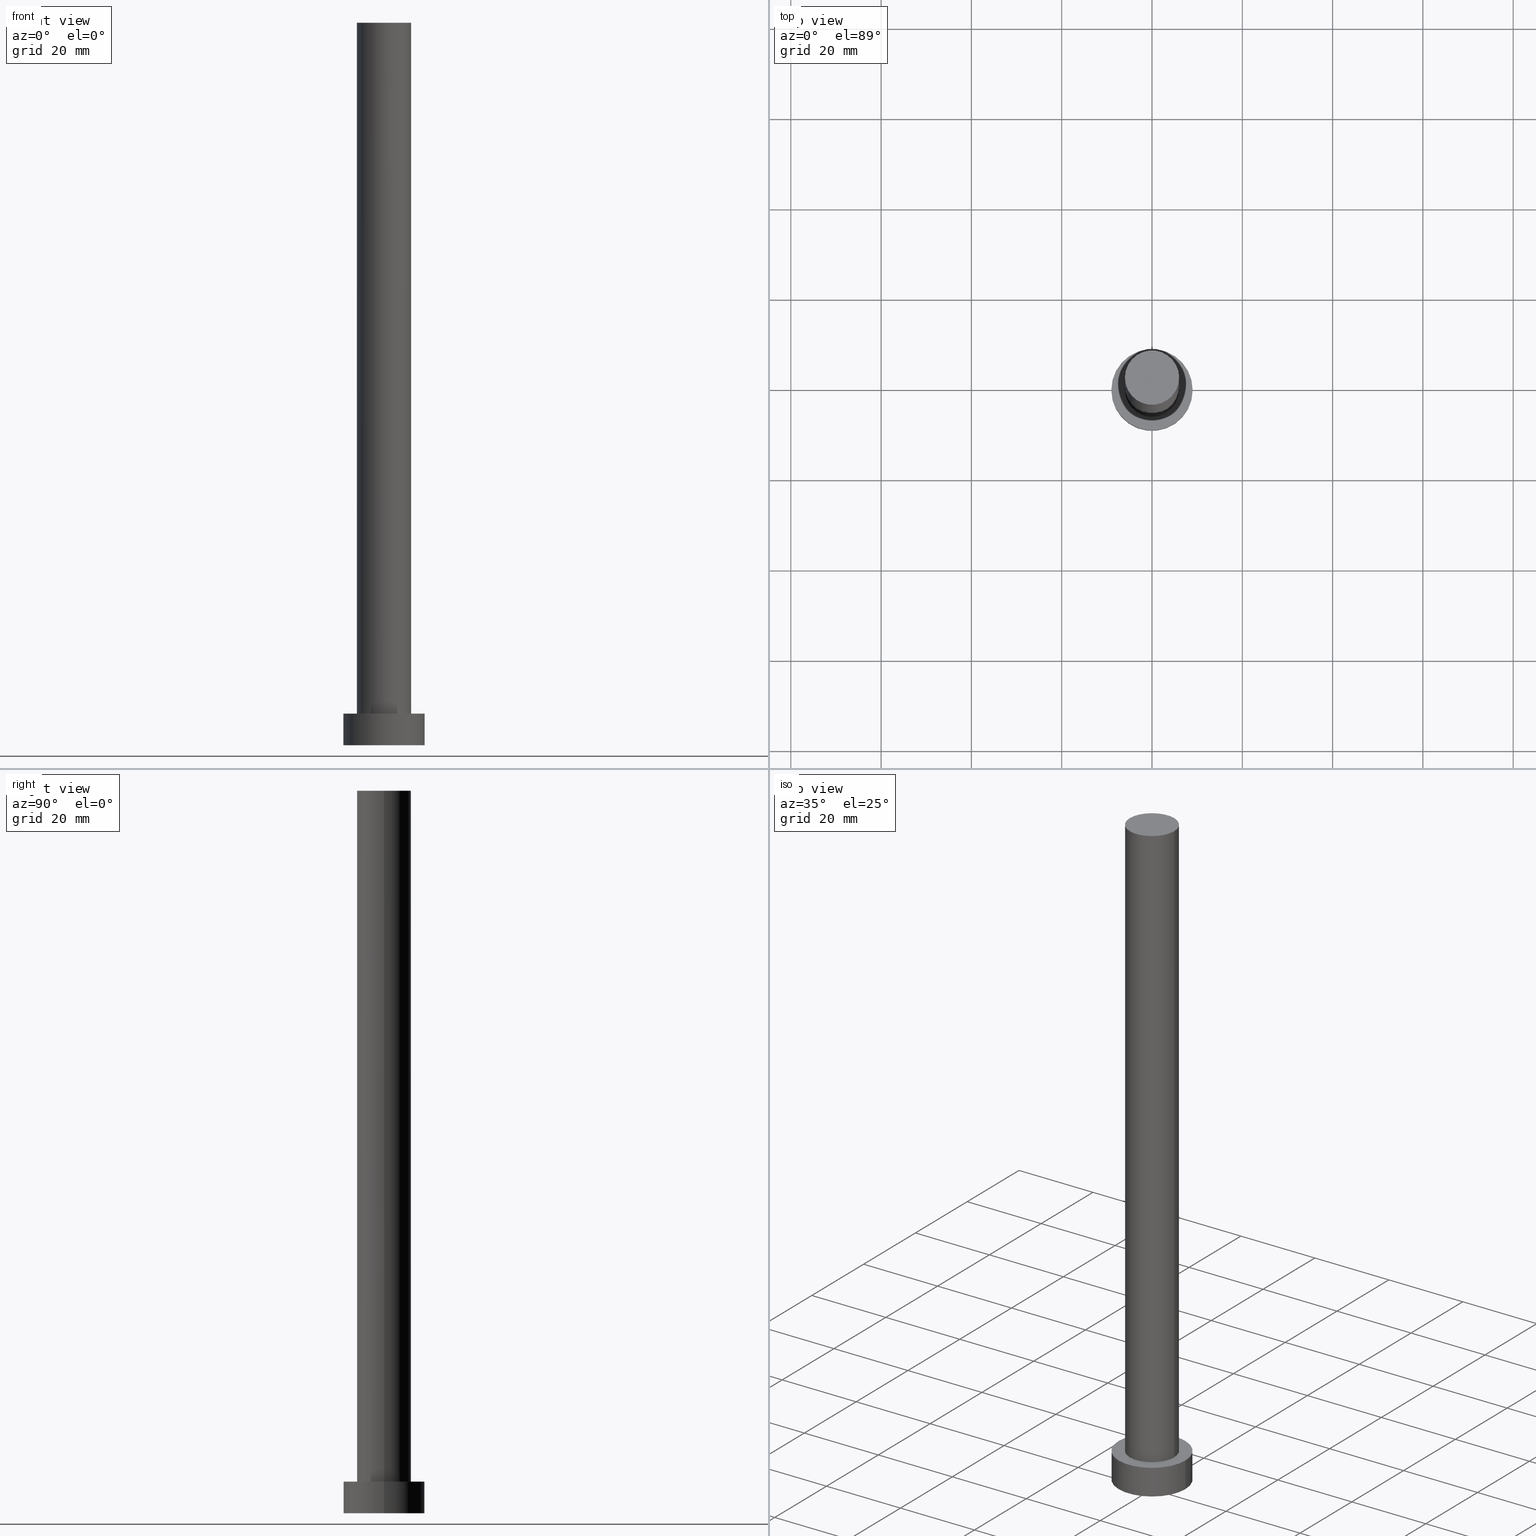
[diagram: canonical four-view strip — front | top / right | iso, engineering-drawing reading convention]
A machine part, canonical four-view strip (front | top / right | iso — engineering-drawing reading convention). The complete STEP part file that produces these views, byte-faithful:
ISO-10303-21;
HEADER;
FILE_DESCRIPTION (( 'STEP AP203' ),
    '1' );
FILE_NAME ('bfc4.STEP',
    '2023-02-13T09:55:40',
    ( '' ),
    ( '' ),
    'SwSTEP 2.0',
    'SolidWorks 2019',
    '' );
FILE_SCHEMA (( 'CONFIG_CONTROL_DESIGN' ));
ENDSEC;

DATA;
#1 = DIRECTION ( 'NONE',  ( 1.000000000000000000, 0.000000000000000000, 0.000000000000000000 ) ) ;
#2 = CARTESIAN_POINT ( 'NONE',  ( -6.000000000000000888, 0.000000000000000000, 7.000000000000000000 ) ) ;
#3 = DIRECTION ( 'NONE',  ( -0.000000000000000000, -0.000000000000000000, -1.000000000000000000 ) ) ;
#4 = FACE_OUTER_BOUND ( 'NONE', #169, .T. ) ;
#5 = CARTESIAN_POINT ( 'NONE',  ( 6.000000000000000888, 7.347880794884120722E-16, 160.0000000000000000 ) ) ;
#6 = ORIENTED_EDGE ( 'NONE', *, *, #74, .T. ) ;
#7 = VECTOR ( 'NONE', #105, 1000.000000000000000 ) ;
#8 = ORIENTED_EDGE ( 'NONE', *, *, #247, .F. ) ;
#9 = EDGE_LOOP ( 'NONE', ( #72, #248 ) ) ;
#10 = DATE_AND_TIME ( #211, #80 ) ;
#11 = EDGE_LOOP ( 'NONE', ( #33, #71 ) ) ;
#12 = DIRECTION ( 'NONE',  ( -0.000000000000000000, -0.000000000000000000, -1.000000000000000000 ) ) ;
#13 = ADVANCED_FACE ( 'NONE', ( #232 ), #139, .T. ) ;
#14 = CALENDAR_DATE ( 2023, 13, 2 ) ;
#15 = CARTESIAN_POINT ( 'NONE',  ( -9.000000000000000000, 0.000000000000000000, 7.000000000000000000 ) ) ;
#16 = CARTESIAN_POINT ( 'NONE',  ( 0.000000000000000000, 0.000000000000000000, 7.000000000000000000 ) ) ;
#17 = UNCERTAINTY_MEASURE_WITH_UNIT (LENGTH_MEASURE( 1.000000000000000082E-05 ), #67, 'distance_accuracy_value', 'NONE');
#18 = CARTESIAN_POINT ( 'NONE',  ( -9.000000000000000000, 0.000000000000000000, 0.000000000000000000 ) ) ;
#19 = DIRECTION ( 'NONE',  ( 1.000000000000000000, 0.000000000000000000, 0.000000000000000000 ) ) ;
#20 = CYLINDRICAL_SURFACE ( 'NONE', #162, 9.000000000000000000 ) ;
#21 = DIRECTION ( 'NONE',  ( -1.000000000000000000, 0.000000000000000000, 0.000000000000000000 ) ) ;
#22 = LOCAL_TIME ( 10, 55, 40.00000000000000000, #53 ) ;
#23 = CARTESIAN_POINT ( 'NONE',  ( 0.000000000000000000, 0.000000000000000000, 160.0000000000000000 ) ) ;
#24 = CALENDAR_DATE ( 2023, 13, 2 ) ;
#25 = CC_DESIGN_DATE_AND_TIME_ASSIGNMENT ( #78, #157, ( #121 ) ) ;
#26 = EDGE_LOOP ( 'NONE', ( #135, #210, #227, #250 ) ) ;
#27 = APPROVAL_PERSON_ORGANIZATION ( #100, #136, #254 ) ;
#28 = EDGE_LOOP ( 'NONE', ( #133, #93 ) ) ;
#29 = DIRECTION ( 'NONE',  ( 1.000000000000000000, 0.000000000000000000, 0.000000000000000000 ) ) ;
#30 = ORIENTED_EDGE ( 'NONE', *, *, #56, .F. ) ;
#31 = CIRCLE ( 'NONE', #225, 9.000000000000000000 ) ;
#32 = COORDINATED_UNIVERSAL_TIME_OFFSET ( 1, 0, .AHEAD. ) ;
#33 = ORIENTED_EDGE ( 'NONE', *, *, #240, .F. ) ;
#34 = ADVANCED_FACE ( 'NONE', ( #219, #238 ), #144, .T. ) ;
#35 = LINE ( 'NONE', #116, #7 ) ;
#36 = COORDINATED_UNIVERSAL_TIME_OFFSET ( 1, 0, .AHEAD. ) ;
#37 = EDGE_CURVE ( 'NONE', #129, #115, #90, .T. ) ;
#38 = DIRECTION ( 'NONE',  ( 1.000000000000000000, 0.000000000000000000, -0.000000000000000000 ) ) ;
#39 = CIRCLE ( 'NONE', #165, 6.000000000000000888 ) ;
#40 = PERSON_AND_ORGANIZATION_ROLE ( 'creator' ) ;
#41 = CARTESIAN_POINT ( 'NONE',  ( 0.000000000000000000, 0.000000000000000000, 160.0000000000000000 ) ) ;
#42 = EDGE_CURVE ( 'NONE', #91, #186, #228, .T. ) ;
#43 = APPROVAL_ROLE ( '' ) ;
#44 = DIRECTION ( 'NONE',  ( 0.000000000000000000, 0.000000000000000000, 1.000000000000000000 ) ) ;
#45 = FACE_OUTER_BOUND ( 'NONE', #251, .T. ) ;
#46 = AXIS2_PLACEMENT_3D ( 'NONE', #141, #44, #229 ) ;
#47 = CYLINDRICAL_SURFACE ( 'NONE', #188, 9.000000000000000000 ) ;
#48 = CARTESIAN_POINT ( 'NONE',  ( 6.000000000000000888, 7.347880794884120722E-16, 160.0000000000000000 ) ) ;
#49 = PRODUCT_DEFINITION_FORMATION_WITH_SPECIFIED_SOURCE ( 'LIBOVOLN�', '', #233, .NOT_KNOWN. ) ;
#50 = CARTESIAN_POINT ( 'NONE',  ( 9.000000000000000000, 1.102182119232617714E-15, 0.000000000000000000 ) ) ;
#51 = EDGE_CURVE ( 'NONE', #171, #55, #123, .T. ) ;
#52 = APPROVAL ( #68, 'NEUR�EN�' ) ;
#53 = COORDINATED_UNIVERSAL_TIME_OFFSET ( 1, 0, .AHEAD. ) ;
#54 = ADVANCED_BREP_SHAPE_REPRESENTATION ( 'bfc4', ( #213, #106 ), #92 ) ;
#55 = VERTEX_POINT ( 'NONE', #2 ) ;
#56 = EDGE_CURVE ( 'NONE', #91, #115, #35, .T. ) ;
#57 = EDGE_CURVE ( 'NONE', #127, #55, #60, .T. ) ;
#58 = DIRECTION ( 'NONE',  ( 0.000000000000000000, 0.000000000000000000, 1.000000000000000000 ) ) ;
#59 = PERSON_AND_ORGANIZATION_ROLE ( 'classification_officer' ) ;
#60 = LINE ( 'NONE', #231, #159 ) ;
#61 = FACE_OUTER_BOUND ( 'NONE', #26, .T. ) ;
#62 = DIRECTION ( 'NONE',  ( -0.000000000000000000, -0.000000000000000000, -1.000000000000000000 ) ) ;
#63 = EDGE_CURVE ( 'NONE', #186, #91, #181, .T. ) ;
#64 = DIRECTION ( 'NONE',  ( 0.000000000000000000, 0.000000000000000000, 1.000000000000000000 ) ) ;
#65 = CIRCLE ( 'NONE', #86, 6.000000000000000888 ) ;
#66 = DIRECTION ( 'NONE',  ( -1.000000000000000000, 0.000000000000000000, 0.000000000000000000 ) ) ;
#67 =( LENGTH_UNIT ( ) NAMED_UNIT ( * ) SI_UNIT ( .MILLI., .METRE. ) );
#68 = APPROVAL_STATUS ( 'not_yet_approved' ) ;
#69 = APPLICATION_CONTEXT ( 'configuration controlled 3d designs of mechanical parts and assemblies' ) ;
#70 = ORIENTED_EDGE ( 'NONE', *, *, #95, .T. ) ;
#71 = ORIENTED_EDGE ( 'NONE', *, *, #37, .F. ) ;
#72 = ORIENTED_EDGE ( 'NONE', *, *, #214, .F. ) ;
#73 = PERSON_AND_ORGANIZATION_ROLE ( 'creator' ) ;
#74 = EDGE_CURVE ( 'NONE', #127, #170, #149, .T. ) ;
#75 = APPROVAL ( #114, 'NEUR�EN�' ) ;
#76 = COORDINATED_UNIVERSAL_TIME_OFFSET ( 1, 0, .AHEAD. ) ;
#77 = DIRECTION ( 'NONE',  ( 1.000000000000000000, 0.000000000000000000, 0.000000000000000000 ) ) ;
#78 = DATE_AND_TIME ( #161, #153 ) ;
#79 = LINE ( 'NONE', #193, #185 ) ;
#80 = LOCAL_TIME ( 10, 55, 40.00000000000000000, #36 ) ;
#81 = DIRECTION ( 'NONE',  ( 1.000000000000000000, 0.000000000000000000, 0.000000000000000000 ) ) ;
#82 = DIRECTION ( 'NONE',  ( -1.000000000000000000, 0.000000000000000000, 0.000000000000000000 ) ) ;
#83 = EDGE_CURVE ( 'NONE', #186, #129, #79, .T. ) ;
#84 = DIRECTION ( 'NONE',  ( -1.000000000000000000, 0.000000000000000000, 0.000000000000000000 ) ) ;
#85 = CC_DESIGN_SECURITY_CLASSIFICATION ( #199, ( #49 ) ) ;
#86 = AXIS2_PLACEMENT_3D ( 'NONE', #99, #118, #195 ) ;
#87 = PLANE ( 'NONE',  #235 ) ;
#88 = PERSON_AND_ORGANIZATION_ROLE ( 'design_owner' ) ;
#89 = DATE_AND_TIME ( #24, #22 ) ;
#90 = CIRCLE ( 'NONE', #131, 9.000000000000000000 ) ;
#91 = VERTEX_POINT ( 'NONE', #15 ) ;
#92 =( GEOMETRIC_REPRESENTATION_CONTEXT ( 3 ) GLOBAL_UNCERTAINTY_ASSIGNED_CONTEXT ( ( #17 ) ) GLOBAL_UNIT_ASSIGNED_CONTEXT ( ( #67, #243, #241 ) ) REPRESENTATION_CONTEXT ( 'NONE', 'WORKASPACE' ) );
#93 = ORIENTED_EDGE ( 'NONE', *, *, #63, .T. ) ;
#94 = PERSON_AND_ORGANIZATION ( #97, #249 ) ;
#95 = EDGE_CURVE ( 'NONE', #170, #127, #65, .T. ) ;
#96 = ORIENTED_EDGE ( 'NONE', *, *, #83, .T. ) ;
#97 = PERSON ( 'NEUR�EN�', 'NEUR�EN�', 'NEUR�EN�', ('NEUR�EN�'), ('NEUR�EN�'), ('NEUR�EN�') ) ;
#98 = CC_DESIGN_APPROVAL ( #75, ( #49 ) ) ;
#99 = CARTESIAN_POINT ( 'NONE',  ( 0.000000000000000000, 0.000000000000000000, 160.0000000000000000 ) ) ;
#100 = PERSON_AND_ORGANIZATION ( #97, #249 ) ;
#101 = CARTESIAN_POINT ( 'NONE',  ( 0.000000000000000000, 0.000000000000000000, 0.000000000000000000 ) ) ;
#102 = CARTESIAN_POINT ( 'NONE',  ( -6.000000000000000888, 0.000000000000000000, 160.0000000000000000 ) ) ;
#103 = DIRECTION ( 'NONE',  ( -0.000000000000000000, -0.000000000000000000, -1.000000000000000000 ) ) ;
#104 = DIRECTION ( 'NONE',  ( 0.000000000000000000, 0.000000000000000000, 1.000000000000000000 ) ) ;
#105 = DIRECTION ( 'NONE',  ( -0.000000000000000000, -0.000000000000000000, -1.000000000000000000 ) ) ;
#106 = AXIS2_PLACEMENT_3D ( 'NONE', #155, #132, #29 ) ;
#107 = DIRECTION ( 'NONE',  ( 0.000000000000000000, 0.000000000000000000, 1.000000000000000000 ) ) ;
#108 = FACE_OUTER_BOUND ( 'NONE', #11, .T. ) ;
#109 = PERSON_AND_ORGANIZATION ( #97, #249 ) ;
#110 = LOCAL_TIME ( 10, 55, 40.00000000000000000, #32 ) ;
#111 = AXIS2_PLACEMENT_3D ( 'NONE', #175, #120, #81 ) ;
#112 = ORIENTED_EDGE ( 'NONE', *, *, #42, .F. ) ;
#113 = MECHANICAL_CONTEXT ( 'NONE', #69, 'mechanical' ) ;
#114 = APPROVAL_STATUS ( 'not_yet_approved' ) ;
#115 = VERTEX_POINT ( 'NONE', #18 ) ;
#116 = CARTESIAN_POINT ( 'NONE',  ( -9.000000000000000000, 0.000000000000000000, 7.000000000000000000 ) ) ;
#117 = APPROVAL_PERSON_ORGANIZATION ( #234, #75, #43 ) ;
#118 = DIRECTION ( 'NONE',  ( 0.000000000000000000, 0.000000000000000000, 1.000000000000000000 ) ) ;
#119 = DIRECTION ( 'NONE',  ( 1.000000000000000000, 0.000000000000000000, 0.000000000000000000 ) ) ;
#120 = DIRECTION ( 'NONE',  ( 0.000000000000000000, 0.000000000000000000, 1.000000000000000000 ) ) ;
#121 = PRODUCT_DEFINITION ( 'NEZN�M�', '', #49, #236 ) ;
#122 = DIRECTION ( 'NONE',  ( -0.000000000000000000, -0.000000000000000000, -1.000000000000000000 ) ) ;
#123 = CIRCLE ( 'NONE', #111, 6.000000000000000888 ) ;
#124 = CARTESIAN_POINT ( 'NONE',  ( 0.000000000000000000, 0.000000000000000000, 0.000000000000000000 ) ) ;
#125 = CARTESIAN_POINT ( 'NONE',  ( 6.000000000000000888, 7.347880794884120722E-16, 7.000000000000000000 ) ) ;
#126 = CARTESIAN_POINT ( 'NONE',  ( 0.000000000000000000, 0.000000000000000000, 160.0000000000000000 ) ) ;
#127 = VERTEX_POINT ( 'NONE', #102 ) ;
#128 = AXIS2_PLACEMENT_3D ( 'NONE', #126, #180, #82 ) ;
#129 = VERTEX_POINT ( 'NONE', #50 ) ;
#130 = CC_DESIGN_PERSON_AND_ORGANIZATION_ASSIGNMENT ( #160, #230, ( #49 ) ) ;
#131 = AXIS2_PLACEMENT_3D ( 'NONE', #101, #255, #119 ) ;
#132 = DIRECTION ( 'NONE',  ( 0.000000000000000000, 0.000000000000000000, 1.000000000000000000 ) ) ;
#133 = ORIENTED_EDGE ( 'NONE', *, *, #42, .T. ) ;
#134 = DATE_TIME_ROLE ( 'classification_date' ) ;
#135 = ORIENTED_EDGE ( 'NONE', *, *, #95, .F. ) ;
#136 = APPROVAL ( #191, 'NEUR�EN�' ) ;
#137 = DIRECTION ( 'NONE',  ( -0.000000000000000000, -0.000000000000000000, -1.000000000000000000 ) ) ;
#138 = DATE_AND_TIME ( #14, #110 ) ;
#139 = CYLINDRICAL_SURFACE ( 'NONE', #237, 6.000000000000000888 ) ;
#140 = COORDINATED_UNIVERSAL_TIME_OFFSET ( 1, 0, .AHEAD. ) ;
#141 = CARTESIAN_POINT ( 'NONE',  ( 0.000000000000000000, 0.000000000000000000, 160.0000000000000000 ) ) ;
#142 = APPROVAL_PERSON_ORGANIZATION ( #244, #52, #223 ) ;
#143 = CALENDAR_DATE ( 2023, 13, 2 ) ;
#144 = PLANE ( 'NONE',  #163 ) ;
#145 = ADVANCED_FACE ( 'NONE', ( #61 ), #151, .T. ) ;
#146 = CARTESIAN_POINT ( 'NONE',  ( 0.000000000000000000, 0.000000000000000000, 7.000000000000000000 ) ) ;
#147 = DIRECTION ( 'NONE',  ( 1.000000000000000000, 0.000000000000000000, -0.000000000000000000 ) ) ;
#148 = CC_DESIGN_APPROVAL ( #136, ( #199 ) ) ;
#149 = CIRCLE ( 'NONE', #46, 6.000000000000000888 ) ;
#150 = DIRECTION ( 'NONE',  ( 0.000000000000000000, 0.000000000000000000, 1.000000000000000000 ) ) ;
#151 = CYLINDRICAL_SURFACE ( 'NONE', #128, 6.000000000000000888 ) ;
#152 = AXIS2_PLACEMENT_3D ( 'NONE', #124, #64, #182 ) ;
#153 = LOCAL_TIME ( 10, 55, 40.00000000000000000, #140 ) ;
#154 = ADVANCED_FACE ( 'NONE', ( #4 ), #47, .T. ) ;
#155 = CARTESIAN_POINT ( 'NONE',  ( 0.000000000000000000, 0.000000000000000000, 0.000000000000000000 ) ) ;
#156 = EDGE_LOOP ( 'NONE', ( #246, #112, #252, #207 ) ) ;
#157 = DATE_TIME_ROLE ( 'creation_date' ) ;
#158 = CARTESIAN_POINT ( 'NONE',  ( 0.000000000000000000, 0.000000000000000000, 7.000000000000000000 ) ) ;
#159 = VECTOR ( 'NONE', #137, 1000.000000000000000 ) ;
#160 = PERSON_AND_ORGANIZATION ( #97, #249 ) ;
#161 = CALENDAR_DATE ( 2023, 13, 2 ) ;
#162 = AXIS2_PLACEMENT_3D ( 'NONE', #204, #3, #66 ) ;
#163 = AXIS2_PLACEMENT_3D ( 'NONE', #16, #104, #38 ) ;
#164 = CARTESIAN_POINT ( 'NONE',  ( 0.000000000000000000, 0.000000000000000000, 7.000000000000000000 ) ) ;
#165 = AXIS2_PLACEMENT_3D ( 'NONE', #146, #107, #239 ) ;
#166 = PLANE ( 'NONE',  #152 ) ;
#167 = APPLICATION_PROTOCOL_DEFINITION ( 'international standard', 'config_control_design', 1994, #174 ) ;
#168 = APPROVAL_DATE_TIME ( #89, #52 ) ;
#169 = EDGE_LOOP ( 'NONE', ( #184, #96, #224, #30 ) ) ;
#170 = VERTEX_POINT ( 'NONE', #48 ) ;
#171 = VERTEX_POINT ( 'NONE', #125 ) ;
#172 = DATE_AND_TIME ( #143, #253 ) ;
#173 = CC_DESIGN_PERSON_AND_ORGANIZATION_ASSIGNMENT ( #94, #59, ( #199 ) ) ;
#174 = APPLICATION_CONTEXT ( 'configuration controlled 3d designs of mechanical parts and assemblies' ) ;
#175 = CARTESIAN_POINT ( 'NONE',  ( 0.000000000000000000, 0.000000000000000000, 7.000000000000000000 ) ) ;
#176 = CARTESIAN_POINT ( 'NONE',  ( 9.000000000000000000, 1.102182119232617714E-15, 7.000000000000000000 ) ) ;
#177 = DIRECTION ( 'NONE',  ( 0.000000000000000000, 0.000000000000000000, 1.000000000000000000 ) ) ;
#178 = FACE_OUTER_BOUND ( 'NONE', #156, .T. ) ;
#179 = ADVANCED_FACE ( 'NONE', ( #178 ), #20, .T. ) ;
#180 = DIRECTION ( 'NONE',  ( -0.000000000000000000, -0.000000000000000000, -1.000000000000000000 ) ) ;
#181 = CIRCLE ( 'NONE', #194, 9.000000000000000000 ) ;
#182 = DIRECTION ( 'NONE',  ( 1.000000000000000000, 0.000000000000000000, -0.000000000000000000 ) ) ;
#183 = CC_DESIGN_APPROVAL ( #52, ( #121 ) ) ;
#184 = ORIENTED_EDGE ( 'NONE', *, *, #63, .F. ) ;
#185 = VECTOR ( 'NONE', #12, 1000.000000000000000 ) ;
#186 = VERTEX_POINT ( 'NONE', #176 ) ;
#187 = EDGE_LOOP ( 'NONE', ( #8, #212, #208, #209 ) ) ;
#188 = AXIS2_PLACEMENT_3D ( 'NONE', #164, #62, #84 ) ;
#189 = CC_DESIGN_DATE_AND_TIME_ASSIGNMENT ( #172, #134, ( #199 ) ) ;
#190 = SHAPE_DEFINITION_REPRESENTATION ( #197, #54 ) ;
#191 = APPROVAL_STATUS ( 'not_yet_approved' ) ;
#192 = SECURITY_CLASSIFICATION_LEVEL ( 'unclassified' ) ;
#193 = CARTESIAN_POINT ( 'NONE',  ( 9.000000000000000000, 1.102182119232617714E-15, 7.000000000000000000 ) ) ;
#194 = AXIS2_PLACEMENT_3D ( 'NONE', #158, #58, #77 ) ;
#195 = DIRECTION ( 'NONE',  ( 1.000000000000000000, 0.000000000000000000, 0.000000000000000000 ) ) ;
#196 = CARTESIAN_POINT ( 'NONE',  ( 0.000000000000000000, 0.000000000000000000, 7.000000000000000000 ) ) ;
#197 = PRODUCT_DEFINITION_SHAPE ( 'NONE', 'NONE',  #121 ) ;
#198 = ADVANCED_FACE ( 'NONE', ( #45 ), #87, .T. ) ;
#199 = SECURITY_CLASSIFICATION ( '', '', #192 ) ;
#200 = CLOSED_SHELL ( 'NONE', ( #145, #154, #179, #34, #201, #13, #198 ) ) ;
#201 = ADVANCED_FACE ( 'NONE', ( #108 ), #166, .F. ) ;
#202 = DIRECTION ( 'NONE',  ( 0.000000000000000000, 0.000000000000000000, 1.000000000000000000 ) ) ;
#203 = VECTOR ( 'NONE', #122, 1000.000000000000000 ) ;
#204 = CARTESIAN_POINT ( 'NONE',  ( 0.000000000000000000, 0.000000000000000000, 7.000000000000000000 ) ) ;
#205 = CC_DESIGN_PERSON_AND_ORGANIZATION_ASSIGNMENT ( #109, #88, ( #233 ) ) ;
#206 = PRODUCT_RELATED_PRODUCT_CATEGORY ( 'detail', '', ( #233 ) ) ;
#207 = ORIENTED_EDGE ( 'NONE', *, *, #240, .T. ) ;
#208 = ORIENTED_EDGE ( 'NONE', *, *, #57, .T. ) ;
#209 = ORIENTED_EDGE ( 'NONE', *, *, #214, .T. ) ;
#210 = ORIENTED_EDGE ( 'NONE', *, *, #247, .T. ) ;
#211 = CALENDAR_DATE ( 2023, 13, 2 ) ;
#212 = ORIENTED_EDGE ( 'NONE', *, *, #74, .F. ) ;
#213 = MANIFOLD_SOLID_BREP ( 'P�idat vysunut�m3', #200 ) ;
#214 = EDGE_CURVE ( 'NONE', #55, #171, #39, .T. ) ;
#215 = CC_DESIGN_PERSON_AND_ORGANIZATION_ASSIGNMENT ( #245, #40, ( #121 ) ) ;
#216 = APPROVAL_DATE_TIME ( #138, #75 ) ;
#217 = PERSON_AND_ORGANIZATION ( #97, #249 ) ;
#218 = APPROVAL_DATE_TIME ( #10, #136 ) ;
#219 = FACE_BOUND ( 'NONE', #9, .T. ) ;
#220 = LINE ( 'NONE', #5, #203 ) ;
#221 = APPLICATION_PROTOCOL_DEFINITION ( 'international standard', 'config_control_design', 1994, #69 ) ;
#222 = AXIS2_PLACEMENT_3D ( 'NONE', #196, #177, #19 ) ;
#223 = APPROVAL_ROLE ( '' ) ;
#224 = ORIENTED_EDGE ( 'NONE', *, *, #37, .T. ) ;
#225 = AXIS2_PLACEMENT_3D ( 'NONE', #242, #150, #1 ) ;
#226 = CC_DESIGN_PERSON_AND_ORGANIZATION_ASSIGNMENT ( #217, #73, ( #49 ) ) ;
#227 = ORIENTED_EDGE ( 'NONE', *, *, #51, .T. ) ;
#228 = CIRCLE ( 'NONE', #222, 9.000000000000000000 ) ;
#229 = DIRECTION ( 'NONE',  ( 1.000000000000000000, 0.000000000000000000, 0.000000000000000000 ) ) ;
#230 = PERSON_AND_ORGANIZATION_ROLE ( 'design_supplier' ) ;
#231 = CARTESIAN_POINT ( 'NONE',  ( -6.000000000000000888, 0.000000000000000000, 160.0000000000000000 ) ) ;
#232 = FACE_OUTER_BOUND ( 'NONE', #187, .T. ) ;
#233 = PRODUCT ( 'bfc4', 'bfc4', '', ( #113 ) ) ;
#234 = PERSON_AND_ORGANIZATION ( #97, #249 ) ;
#235 = AXIS2_PLACEMENT_3D ( 'NONE', #23, #202, #147 ) ;
#236 = DESIGN_CONTEXT ( 'detailed design', #174, 'design' ) ;
#237 = AXIS2_PLACEMENT_3D ( 'NONE', #41, #103, #21 ) ;
#238 = FACE_OUTER_BOUND ( 'NONE', #28, .T. ) ;
#239 = DIRECTION ( 'NONE',  ( 1.000000000000000000, 0.000000000000000000, 0.000000000000000000 ) ) ;
#240 = EDGE_CURVE ( 'NONE', #115, #129, #31, .T. ) ;
#241 =( NAMED_UNIT ( * ) SI_UNIT ( $, .STERADIAN. ) SOLID_ANGLE_UNIT ( ) );
#242 = CARTESIAN_POINT ( 'NONE',  ( 0.000000000000000000, 0.000000000000000000, 0.000000000000000000 ) ) ;
#243 =( NAMED_UNIT ( * ) PLANE_ANGLE_UNIT ( ) SI_UNIT ( $, .RADIAN. ) );
#244 = PERSON_AND_ORGANIZATION ( #97, #249 ) ;
#245 = PERSON_AND_ORGANIZATION ( #97, #249 ) ;
#246 = ORIENTED_EDGE ( 'NONE', *, *, #83, .F. ) ;
#247 = EDGE_CURVE ( 'NONE', #170, #171, #220, .T. ) ;
#248 = ORIENTED_EDGE ( 'NONE', *, *, #51, .F. ) ;
#249 = ORGANIZATION ( 'NEUR�EN�', 'NEUR�EN�', '' ) ;
#250 = ORIENTED_EDGE ( 'NONE', *, *, #57, .F. ) ;
#251 = EDGE_LOOP ( 'NONE', ( #6, #70 ) ) ;
#252 = ORIENTED_EDGE ( 'NONE', *, *, #56, .T. ) ;
#253 = LOCAL_TIME ( 10, 55, 40.00000000000000000, #76 ) ;
#254 = APPROVAL_ROLE ( '' ) ;
#255 = DIRECTION ( 'NONE',  ( 0.000000000000000000, 0.000000000000000000, 1.000000000000000000 ) ) ;
ENDSEC;
END-ISO-10303-21;
